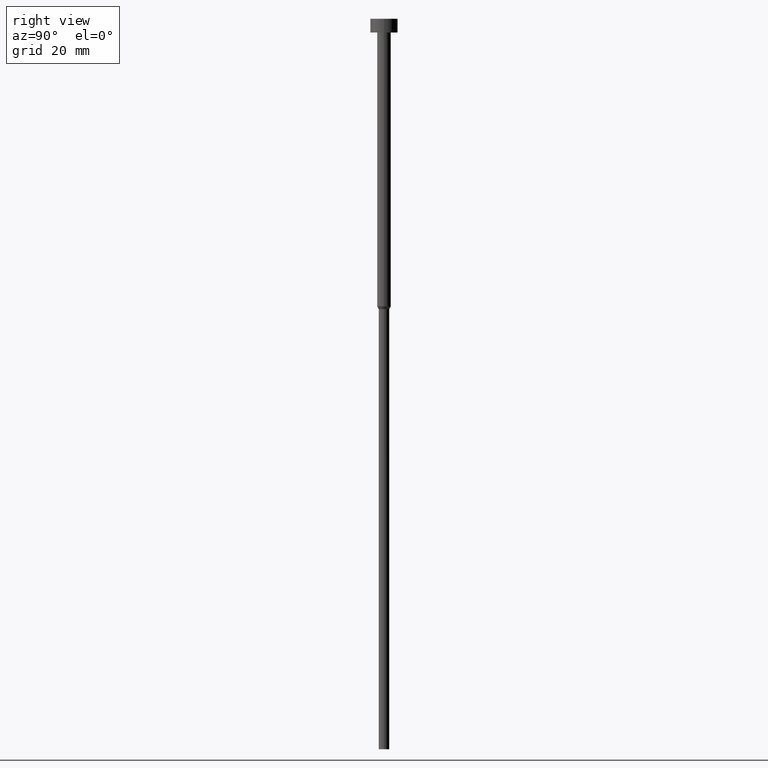
[diagram: clean part render]
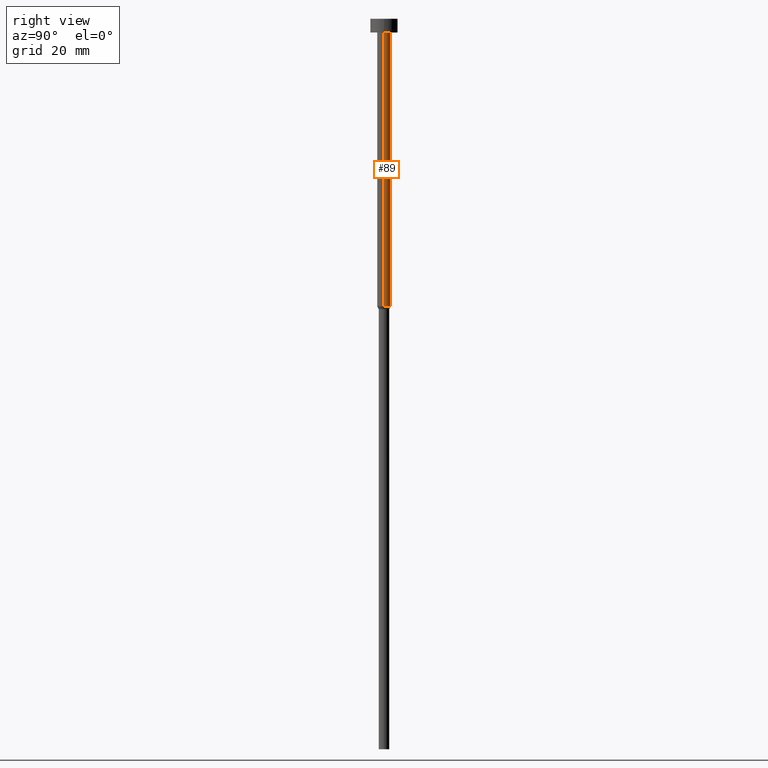
[diagram: same view with one face highlighted and labeled with its STEP entity id]
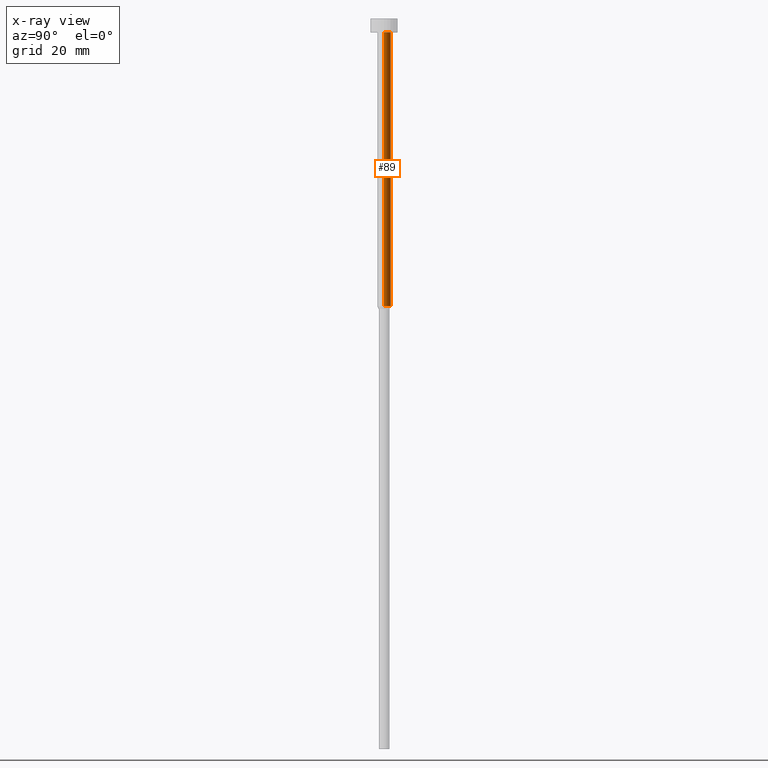
[diagram: x-ray of the same camera — body ghosted, the highlighted face saturated]
A machine part, right view. The second image highlights one B-rep face of the part: STEP entity #89.
The next image is the same camera in x-ray: the body ghosted, the highlighted face saturated — about 0% of this face is hidden behind the body in this view.
In plain terms, the highlighted cylindrical surface (edge-blend (fillet) strip) has radius 1.5 mm, axis along (-0, -0, 1).
Its self-contained STEP definition (entity closure, byte-faithful):
#4 = CARTESIAN_POINT ( 'NONE',  ( 1.500000000000000000, 0.000000000000000000, -63.00000000000000000 ) ) ;
#5 = CYLINDRICAL_SURFACE ( 'NONE', #212, 1.500000000000000000 ) ;
#12 = DIRECTION ( 'NONE',  ( -0.000000000000000000, -0.000000000000000000, 1.000000000000000000 ) ) ;
#23 = VECTOR ( 'NONE', #336, 1000.000000000000000 ) ;
#34 = CARTESIAN_POINT ( 'NONE',  ( 0.000000000000000000, 0.000000000000000000, -3.000000000000000888 ) ) ;
#38 = CARTESIAN_POINT ( 'NONE',  ( 0.000000000000000000, 0.000000000000000000, 0.000000000000000000 ) ) ;
#62 = VERTEX_POINT ( 'NONE', #140 ) ;
#64 = EDGE_CURVE ( 'NONE', #90, #116, #179, .T. ) ;
#67 = FACE_OUTER_BOUND ( 'NONE', #331, .T. ) ;
#77 = ORIENTED_EDGE ( 'NONE', *, *, #64, .T. ) ;
#89 = ADVANCED_FACE ( 'NONE', ( #67 ), #5, .T. ) ;
#90 = VERTEX_POINT ( 'NONE', #4 ) ;
#91 = CARTESIAN_POINT ( 'NONE',  ( 0.000000000000000000, 0.000000000000000000, -63.00000000000000000 ) ) ;
#110 = VERTEX_POINT ( 'NONE', #235 ) ;
#114 = VECTOR ( 'NONE', #12, 1000.000000000000000 ) ;
#116 = VERTEX_POINT ( 'NONE', #282 ) ;
#122 = LINE ( 'NONE', #238, #23 ) ;
#124 = LINE ( 'NONE', #261, #114 ) ;
#132 = EDGE_CURVE ( 'NONE', #90, #110, #124, .T. ) ;
#140 = CARTESIAN_POINT ( 'NONE',  ( -1.500000000000000000, 1.836970198721029934E-16, -3.000000000000000888 ) ) ;
#148 = DIRECTION ( 'NONE',  ( -0.000000000000000000, -0.000000000000000000, 1.000000000000000000 ) ) ;
#152 = DIRECTION ( 'NONE',  ( 1.000000000000000000, 0.000000000000000000, 0.000000000000000000 ) ) ;
#170 = DIRECTION ( 'NONE',  ( -0.000000000000000000, -0.000000000000000000, 1.000000000000000000 ) ) ;
#179 = CIRCLE ( 'NONE', #291, 1.500000000000000000 ) ;
#205 = DIRECTION ( 'NONE',  ( 1.000000000000000000, 0.000000000000000000, 0.000000000000000000 ) ) ;
#212 = AXIS2_PLACEMENT_3D ( 'NONE', #38, #284, #152 ) ;
#224 = EDGE_CURVE ( 'NONE', #110, #62, #267, .T. ) ;
#230 = ORIENTED_EDGE ( 'NONE', *, *, #236, .T. ) ;
#235 = CARTESIAN_POINT ( 'NONE',  ( 1.500000000000000000, 0.000000000000000000, -3.000000000000000888 ) ) ;
#236 = EDGE_CURVE ( 'NONE', #116, #62, #122, .T. ) ;
#238 = CARTESIAN_POINT ( 'NONE',  ( -1.500000000000000000, 1.836970198721029934E-16, 0.000000000000000000 ) ) ;
#261 = CARTESIAN_POINT ( 'NONE',  ( 1.500000000000000000, 0.000000000000000000, 0.000000000000000000 ) ) ;
#265 = ORIENTED_EDGE ( 'NONE', *, *, #224, .F. ) ;
#267 = CIRCLE ( 'NONE', #353, 1.500000000000000000 ) ;
#276 = DIRECTION ( 'NONE',  ( 1.000000000000000000, 0.000000000000000000, 0.000000000000000000 ) ) ;
#282 = CARTESIAN_POINT ( 'NONE',  ( -1.500000000000000000, 1.836970198721029934E-16, -63.00000000000000000 ) ) ;
#284 = DIRECTION ( 'NONE',  ( -0.000000000000000000, -0.000000000000000000, 1.000000000000000000 ) ) ;
#291 = AXIS2_PLACEMENT_3D ( 'NONE', #91, #170, #276 ) ;
#331 = EDGE_LOOP ( 'NONE', ( #77, #230, #265, #354 ) ) ;
#336 = DIRECTION ( 'NONE',  ( -0.000000000000000000, -0.000000000000000000, 1.000000000000000000 ) ) ;
#353 = AXIS2_PLACEMENT_3D ( 'NONE', #34, #148, #205 ) ;
#354 = ORIENTED_EDGE ( 'NONE', *, *, #132, .F. ) ;